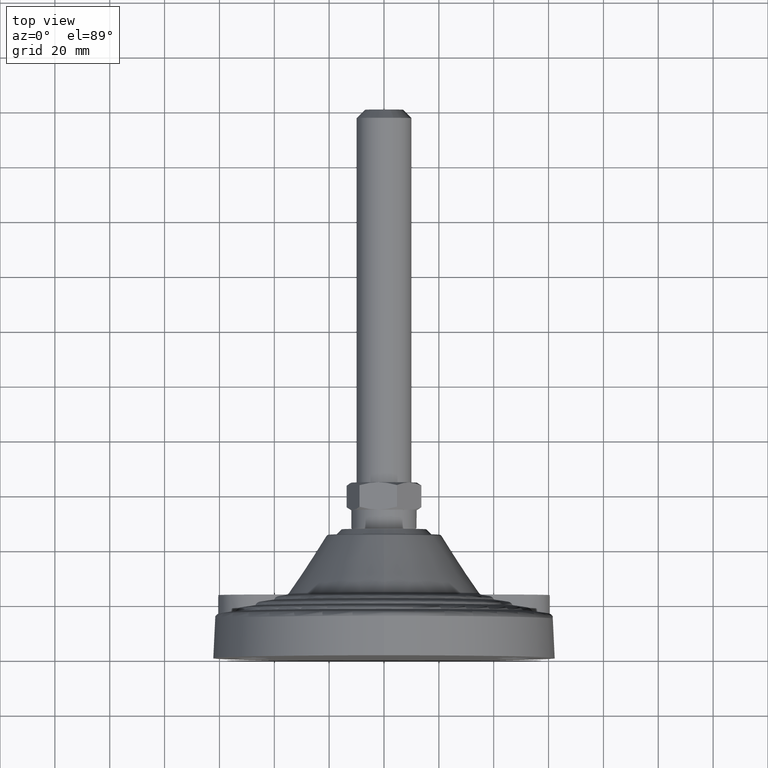
[diagram: clean part render]
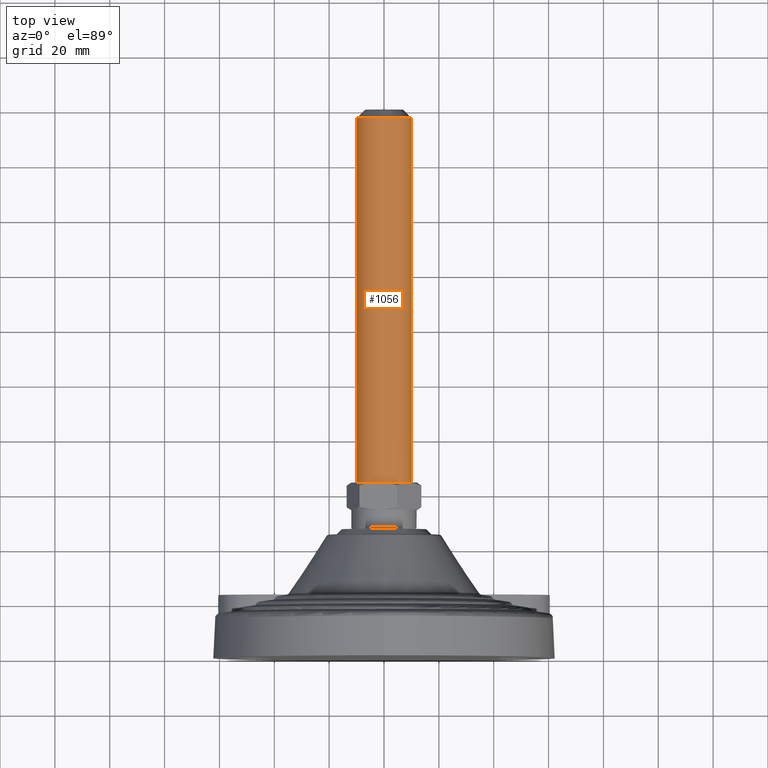
[diagram: same view with one face highlighted and labeled with its STEP entity id]
A machine part, top view. The second image highlights one B-rep face of the part: STEP entity #1056.
In plain terms, the highlighted cylindrical surface (bore or boss wall) has radius 10 mm, axis along (0, 1, 0).
Its self-contained STEP definition (entity closure, byte-faithful):
#121=CYLINDRICAL_SURFACE('',#1277,10.);
#143=LINE('',#2162,#166);
#166=VECTOR('',#1549,10.);
#225=FACE_OUTER_BOUND('',#290,.T.);
#290=EDGE_LOOP('',(#885,#886,#887,#888,#889,#890));
#362=CIRCLE('',#1274,10.);
#363=CIRCLE('',#1275,10.);
#364=CIRCLE('',#1278,10.);
#365=CIRCLE('',#1279,10.);
#468=VERTEX_POINT('',#2153);
#469=VERTEX_POINT('',#2154);
#470=VERTEX_POINT('',#2159);
#471=VERTEX_POINT('',#2160);
#613=EDGE_CURVE('',#468,#469,#362,.T.);
#614=EDGE_CURVE('',#469,#468,#363,.T.);
#615=EDGE_CURVE('',#470,#471,#364,.T.);
#616=EDGE_CURVE('',#471,#469,#143,.T.);
#617=EDGE_CURVE('',#471,#470,#365,.T.);
#885=ORIENTED_EDGE('',*,*,#615,.T.);
#886=ORIENTED_EDGE('',*,*,#616,.T.);
#887=ORIENTED_EDGE('',*,*,#613,.F.);
#888=ORIENTED_EDGE('',*,*,#614,.F.);
#889=ORIENTED_EDGE('',*,*,#616,.F.);
#890=ORIENTED_EDGE('',*,*,#617,.T.);
#1056=ADVANCED_FACE('',(#225),#121,.T.);
#1274=AXIS2_PLACEMENT_3D('',#2155,#1539,#1540);
#1275=AXIS2_PLACEMENT_3D('',#2156,#1541,#1542);
#1277=AXIS2_PLACEMENT_3D('',#2158,#1545,#1546);
#1278=AXIS2_PLACEMENT_3D('',#2161,#1547,#1548);
#1279=AXIS2_PLACEMENT_3D('',#2163,#1550,#1551);
#1539=DIRECTION('center_axis',(0.,-1.,0.));
#1540=DIRECTION('ref_axis',(0.,0.,-1.));
#1541=DIRECTION('center_axis',(0.,-1.,0.));
#1542=DIRECTION('ref_axis',(0.,0.,-1.));
#1545=DIRECTION('center_axis',(0.,1.,0.));
#1546=DIRECTION('ref_axis',(0.,0.,-1.));
#1547=DIRECTION('center_axis',(0.,-1.,0.));
#1548=DIRECTION('ref_axis',(0.,0.,-1.));
#1549=DIRECTION('',(0.,-1.,0.));
#1550=DIRECTION('center_axis',(0.,-1.,0.));
#1551=DIRECTION('ref_axis',(0.,0.,-1.));
#2153=CARTESIAN_POINT('',(0.,64.,-10.));
#2154=CARTESIAN_POINT('',(1.22464679914735E-15,64.,10.));
#2155=CARTESIAN_POINT('Origin',(0.,64.,0.));
#2156=CARTESIAN_POINT('Origin',(0.,64.,0.));
#2158=CARTESIAN_POINT('Origin',(0.,0.,0.));
#2159=CARTESIAN_POINT('',(0.,196.933,-10.));
#2160=CARTESIAN_POINT('',(1.22464679914735E-15,196.933,10.));
#2161=CARTESIAN_POINT('Origin',(0.,196.933,0.));
#2162=CARTESIAN_POINT('',(1.22464679914735E-15,0.,10.));
#2163=CARTESIAN_POINT('Origin',(0.,196.933,0.));